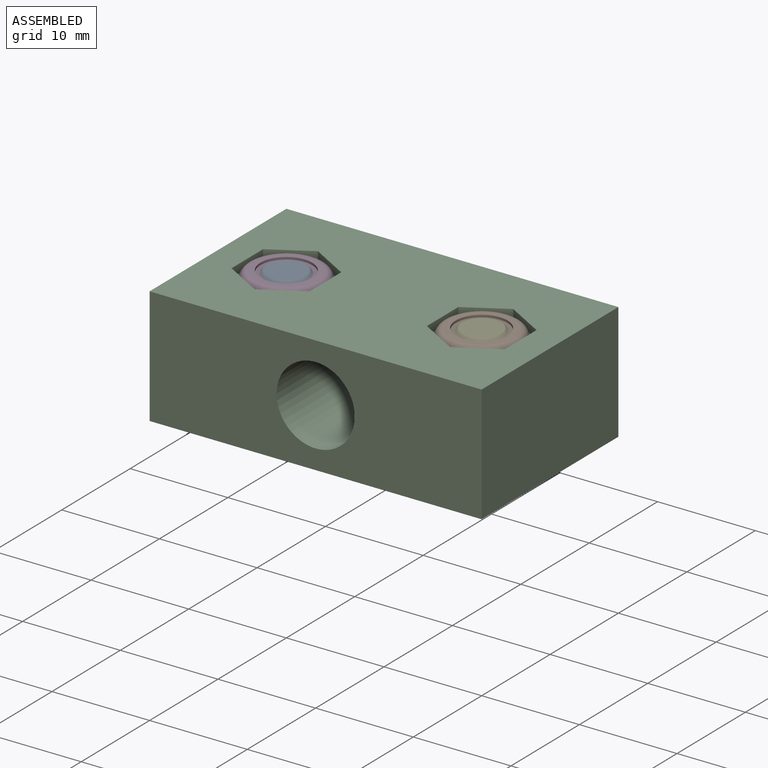
[diagram: assembled view]
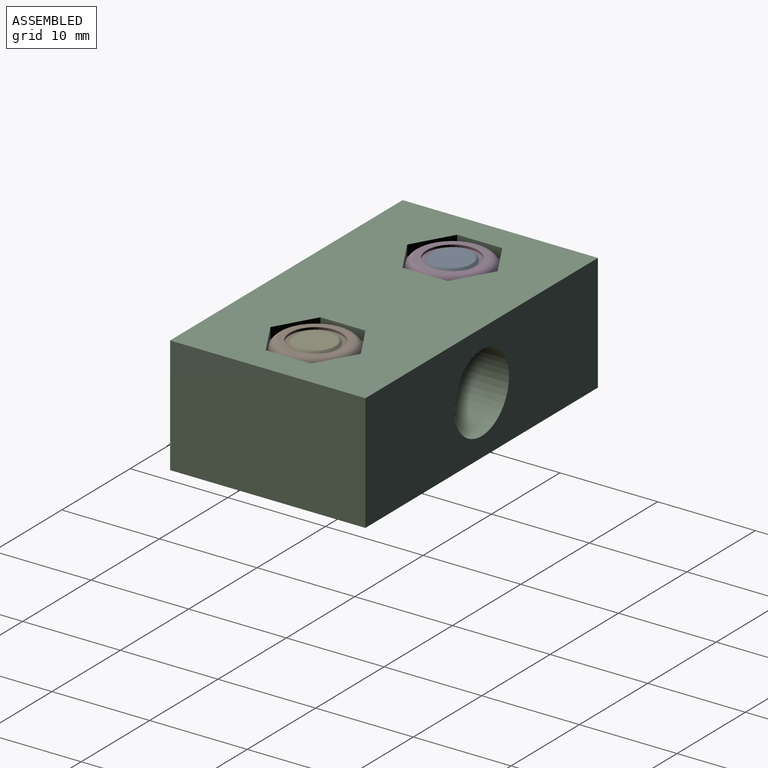
[diagram: assembled view, second angle]
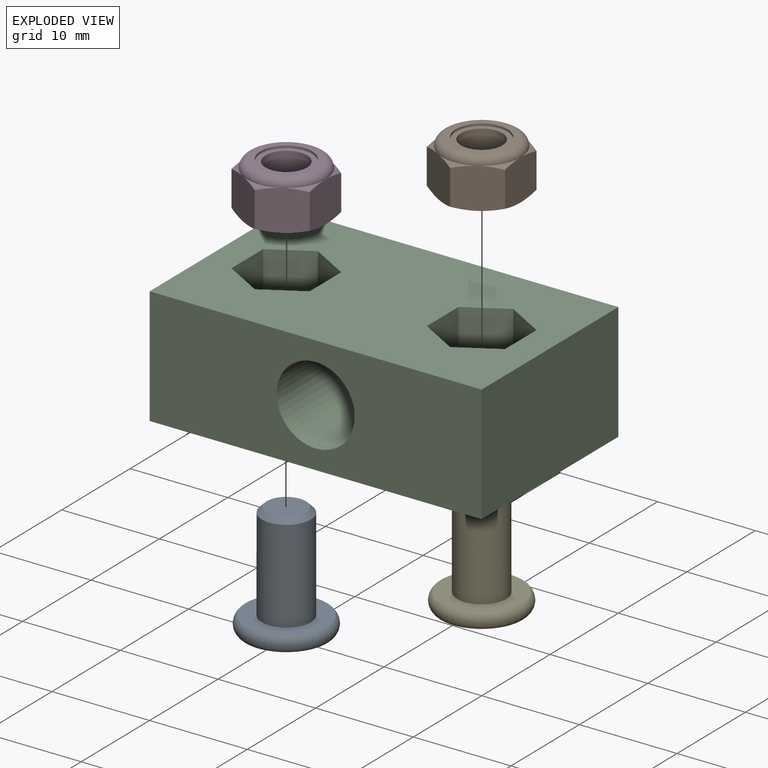
[diagram: exploded view]
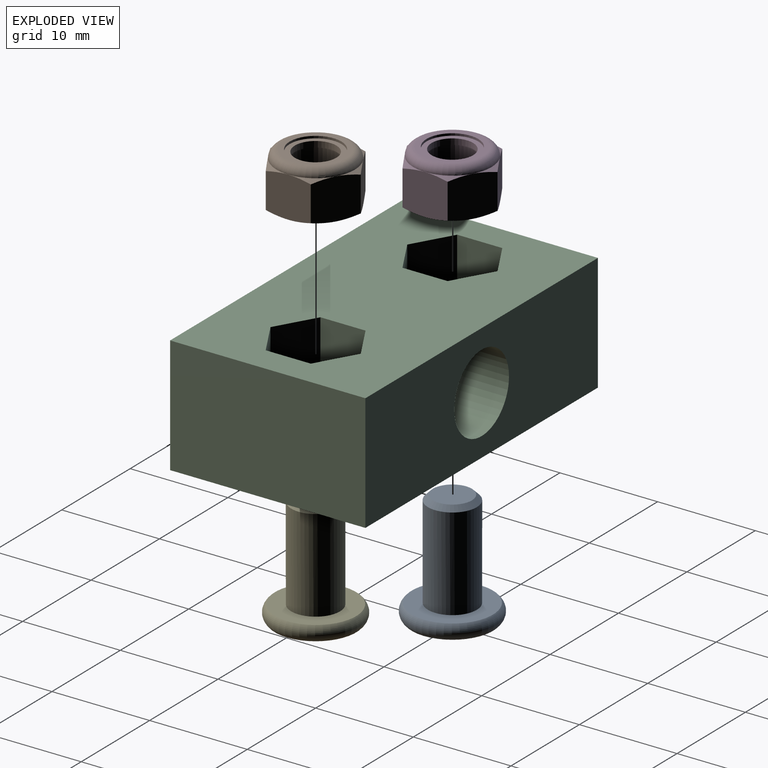
[diagram: exploded view, second angle]
ASSEMBLY  parts=5 mates=4
PART A: 14 faces, bbox 11.8x9.7x9.7 mm
  f0: cone r=1.78mm half-angle=45deg, axis (-1,0,0), area 3.1mm2, adj f5,f8,f9,f10,f11,f12,f13
  f1: torus R=3.5mm, axis (1,0,0), area 46.7mm2, adj f5,f6
  f2: cone r=2mm half-angle=45deg, axis (-1,0,0), area 10mm2, adj f3,f4
  f3: cylinder r=2.5mm len=9.5mm, axis (1,0,0), area 149.2mm2, adj f2,f6
  f4: plane 4x4mm, normal (1,0,0), area 12.6mm2, adj f2
  f5: plane 8.32x8.32mm, normal (-1,0,0), area 44.4mm2, adj f0,f1
  f6: plane 8.32x8.32mm, normal (1,0,0), area 34.8mm2, adj f1,f3
  f7: plane 3.46x3mm, normal (-1,0,0), area 7.8mm2, adj f8,f9,f10,f11,f12,f13
  f8: plane 2.25x1.5mm, normal (0,-0.5,-0.87), area 3.6mm2, adj f0,f7,f9,f13
  f9: plane 2.25x1.73mm, normal (0,-1,0), area 3.6mm2, adj f0,f7,f8,f10
  f10: plane 2.25x1.5mm, normal (0,-0.5,0.87), area 3.6mm2, adj f0,f7,f9,f11
  f11: plane 2.25x1.5mm, normal (0,0.5,0.87), area 3.6mm2, adj f0,f7,f10,f12
  f12: plane 2.25x1.73mm, normal (0,1,0), area 3.6mm2, adj f0,f7,f11,f13
  f13: plane 2.25x1.5mm, normal (0,0.5,-0.87), area 3.6mm2, adj f0,f7,f8,f12
PART B: 26 faces, bbox 9.6x9.6x5.4 mm
  f0: cylinder r=2.12mm len=4.25mm, axis (0,0,-1), area 8mm2, adj f18,f19
  f1: cylinder r=2.65mm len=5.3mm, axis (0,0,-1), area 3.8mm2, adj f17,f18
  f2: torus R=3.17mm, axis (0,0,-1), area 30.3mm2, adj f4,f11,f12,f13,f14,f15,f17
  f3: cylinder r=2.5mm len=5mm, axis (0,0,-1), area 65.5mm2, adj f16,f19
  f4: cone r=4.75mm half-angle=65deg, axis (0,0,-1), area 1.5mm2, adj f2,f22,f23
  f5: cone r=4mm half-angle=65deg, axis (0,0,1), area 1.5mm2, adj f16,f20,f25
  f6: cone r=4mm half-angle=65deg, axis (0,0,1), area 1.5mm2, adj f16,f22,f23
  f7: cone r=4mm half-angle=65deg, axis (0,0,1), area 1.5mm2, adj f16,f21,f22
  f8: cone r=4mm half-angle=65deg, axis (0,0,1), area 1.5mm2, adj f16,f20,f21
  f9: cone r=4mm half-angle=65deg, axis (0,0,1), area 1.5mm2, adj f16,f23,f24
  f10: cone r=4mm half-angle=65deg, axis (0,0,1), area 1.5mm2, adj f16,f24,f25
  f11: cone r=4.75mm half-angle=65deg, axis (0,0,-1), area 1.5mm2, adj f2,f20,f25
  f12: cone r=4.75mm half-angle=65deg, axis (0,0,-1), area 1.5mm2, adj f2,f20,f21
  f13: cone r=4.75mm half-angle=65deg, axis (0,0,-1), area 1.5mm2, adj f2,f21,f22
  f14: cone r=4.75mm half-angle=65deg, axis (0,0,-1), area 1.5mm2, adj f2,f23,f24
  f15: cone r=4.75mm half-angle=65deg, axis (0,0,-1), area 1.5mm2, adj f2,f24,f25
  f16: plane 8x8mm, normal (0,0,-1), area 30.6mm2, adj f3,f5,f6,f7,f8,f9,f10
  f17: plane 6.34x6.34mm, normal (0,0,1), area 9.5mm2, adj f1,f2
  f18: plane 5.3x5.3mm, normal (0,0,1), area 7.9mm2, adj f0,f1
  f19: plane 5x5mm, normal (0,0,-1), area 5.4mm2, adj f0,f3
  f20: plane 4.53x4.36mm, normal (0.5,-0.87,0), area 18.3mm2, adj f5,f8,f11,f12,f21,f25
  f21: plane 4.98x4.53mm, normal (1,0,0), area 18.3mm2, adj f7,f8,f12,f13,f20,f22
  f22: plane 4.53x4.36mm, normal (0.5,0.87,0), area 18.3mm2, adj f4,f6,f7,f13,f21,f23
  f23: plane 4.53x4.36mm, normal (-0.5,0.87,0), area 18.3mm2, adj f4,f6,f9,f14,f22,f24
  f24: plane 4.98x4.53mm, normal (-1,0,0), area 18.3mm2, adj f9,f10,f14,f15,f23,f25
  f25: plane 4.53x4.36mm, normal (-0.5,-0.87,0), area 18.3mm2, adj f5,f10,f11,f15,f20,f24
PART C: 27 faces, bbox 34x20x12 mm
  f0: cylinder r=4.5mm len=9mm, axis (0,0,-1), area 56.5mm2, adj f6,f26
  f1: cylinder r=4.5mm len=9mm, axis (0,0,-1), area 56.5mm2, adj f6,f25
  f2: cylinder r=4mm len=20mm, axis (0,-1,0), area 502.7mm2, adj f9,f10
  f3: cylinder r=2.55mm len=5.1mm, axis (0,0,1), area 80.1mm2, adj f18,f25
  f4: cylinder r=2.55mm len=5.1mm, axis (0,0,1), area 80.1mm2, adj f11,f26
  f5: plane 20x12mm, normal (-1,0,0), area 240mm2, adj f6,f8,f9,f10
  f6: plane 34x20mm, normal (0,0,-1), area 552.8mm2, adj f0,f1,f5,f7,f9,f10
  f7: plane 20x12mm, normal (1,0,0), area 240mm2, adj f6,f8,f9,f10
  f8: plane 34x20mm, normal (0,0,1), area 569.1mm2, adj f5,f7,f9,f10,f12,f13,f14,f15
  f9: plane 34x12mm, normal (0,-1,0), area 357.7mm2, adj f2,f5,f6,f7,f8
  f10: plane 34x12mm, normal (0,1,0), area 357.7mm2, adj f2,f5,f6,f7,f8
  f11: plane 9.24x8mm, normal (0,0,1), area 35mm2, adj f4,f12,f13,f14,f15,f16,f17
  f12: plane 5x4mm, normal (-0.5,-0.87,0), area 23.1mm2, adj f8,f11,f13,f17
  f13: plane 5x4.62mm, normal (-1,0,0), area 23.1mm2, adj f8,f11,f12,f14
  f14: plane 5x4mm, normal (-0.5,0.87,0), area 23.1mm2, adj f8,f11,f13,f15
  f15: plane 5x4mm, normal (0.5,0.87,0), area 23.1mm2, adj f8,f11,f14,f16
  f16: plane 5x4.62mm, normal (1,0,0), area 23.1mm2, adj f8,f11,f15,f17
  f17: plane 5x4mm, normal (0.5,-0.87,0), area 23.1mm2, adj f8,f11,f12,f16
  f18: plane 9.24x8mm, normal (0,0,1), area 35mm2, adj f3,f19,f20,f21,f22,f23,f24
  f19: plane 5x4.62mm, normal (1,0,0), area 23.1mm2, adj f8,f18,f20,f24
  f20: plane 5x4mm, normal (0.5,-0.87,0), area 23.1mm2, adj f8,f18,f19,f21
  f21: plane 5x4mm, normal (-0.5,-0.87,0), area 23.1mm2, adj f8,f18,f20,f22
  f22: plane 5x4.62mm, normal (-1,0,0), area 23.1mm2, adj f8,f18,f21,f23
  f23: plane 5x4mm, normal (-0.5,0.87,0), area 23.1mm2, adj f8,f18,f22,f24
  f24: plane 5x4mm, normal (0.5,0.87,0), area 23.1mm2, adj f8,f18,f19,f23
  f25: plane 9x9mm, normal (0,0,-1), area 43.2mm2, adj f1,f3
  f26: plane 9x9mm, normal (0,0,-1), area 43.2mm2, adj f0,f4
PART D: same geometry as B
PART E: same geometry as A
PLACE A rot(axis=(0,-1,0),90deg) t=(-10,0,-2)mm
PLACE B t=(10,0,-5)mm
PLACE C t=(0,10,-6)mm
PLACE D t=(-10,0,-5)mm
PLACE E rot(axis=(0,-1,0),90deg) t=(10,0,-2)mm
MATE fastened B.f0 <-> C.f3  axis (0,0,-1) through (10,0,-5)mm
MATE fastened E.f0 <-> C.f1  axis (0,0,1) through (10,0,-10)mm
MATE fastened A.f0 <-> C.f4  axis (0,0,1) through (-10,0,-10)mm
MATE fastened D.f0 <-> C.f0  axis (0,0,-1) through (-10,0,-5)mm
